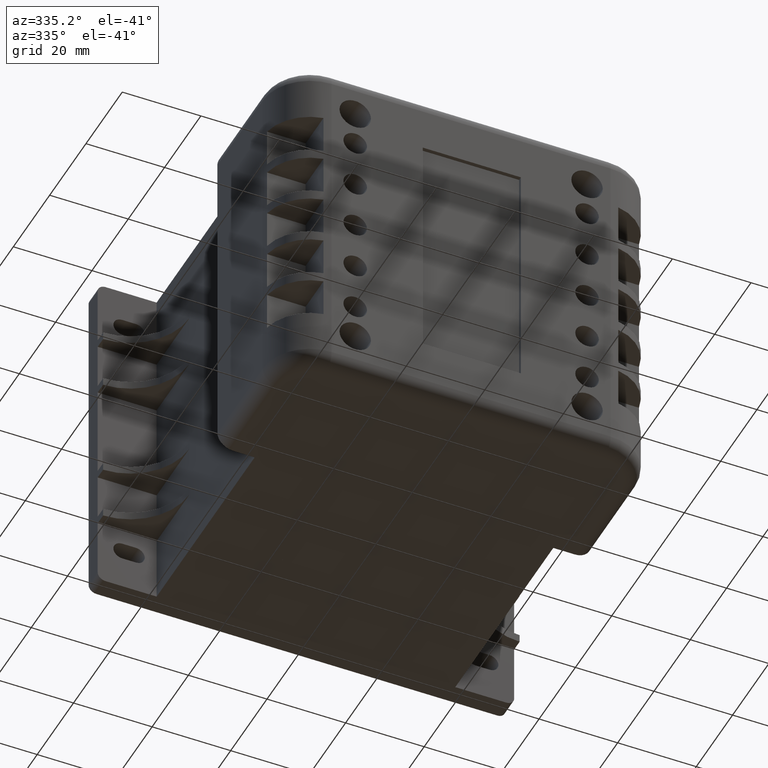
[diagram: clean part render]
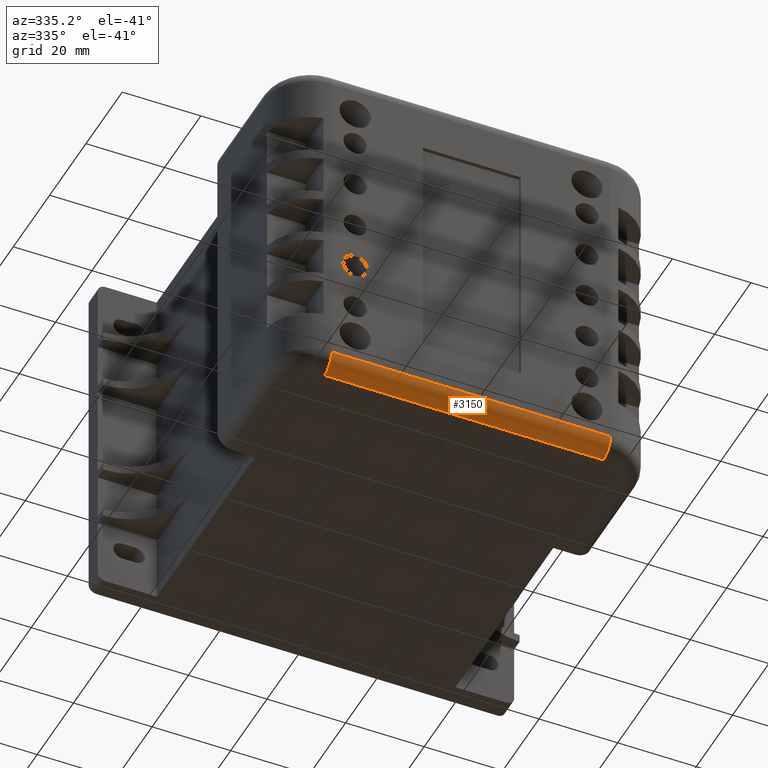
[diagram: same view with one face highlighted and labeled with its STEP entity id]
A machine part, auxiliary view. The second image highlights one B-rep face of the part: STEP entity #3150.
In plain terms, the highlighted cylindrical surface (edge-blend (fillet) strip) has radius 4 mm, axis along (1, -0, 0).
Its self-contained STEP definition (entity closure, byte-faithful):
#42=CYLINDRICAL_SURFACE('',#3486,4.);
#104=CIRCLE('',#3484,4.00000000000001);
#106=CIRCLE('',#3487,4.);
#281=FACE_OUTER_BOUND('',#471,.T.);
#471=EDGE_LOOP('',(#2114,#2115,#2116,#2117));
#683=LINE('',#4708,#987);
#712=LINE('',#4846,#1016);
#987=VECTOR('',#3787,10.);
#1016=VECTOR('',#3954,10.);
#1283=VERTEX_POINT('',#4705);
#1284=VERTEX_POINT('',#4707);
#1323=VERTEX_POINT('',#4840);
#1324=VERTEX_POINT('',#4844);
#1568=EDGE_CURVE('',#1284,#1283,#683,.T.);
#1627=EDGE_CURVE('',#1284,#1323,#104,.T.);
#1629=EDGE_CURVE('',#1283,#1324,#106,.T.);
#1630=EDGE_CURVE('',#1324,#1323,#712,.T.);
#2114=ORIENTED_EDGE('',*,*,#1629,.T.);
#2115=ORIENTED_EDGE('',*,*,#1630,.T.);
#2116=ORIENTED_EDGE('',*,*,#1627,.F.);
#2117=ORIENTED_EDGE('',*,*,#1568,.T.);
#3150=ADVANCED_FACE('',(#281),#42,.T.);
#3484=AXIS2_PLACEMENT_3D('',#4841,#3946,#3947);
#3486=AXIS2_PLACEMENT_3D('',#4843,#3950,#3951);
#3487=AXIS2_PLACEMENT_3D('',#4845,#3952,#3953);
#3787=DIRECTION('',(-1.,0.,0.));
#3946=DIRECTION('center_axis',(1.,0.,0.));
#3947=DIRECTION('ref_axis',(0.,0.,-1.));
#3950=DIRECTION('center_axis',(-1.,0.,0.));
#3951=DIRECTION('ref_axis',(0.,0.707106781186547,-0.707106781186548));
#3952=DIRECTION('center_axis',(1.,0.,0.));
#3953=DIRECTION('ref_axis',(0.,0.,-1.));
#3954=DIRECTION('',(1.,0.,0.));
#4705=CARTESIAN_POINT('',(-83.,33.,0.));
#4707=CARTESIAN_POINT('',(-12.,33.,0.));
#4708=CARTESIAN_POINT('',(-23.75,33.,0.));
#4840=CARTESIAN_POINT('',(-12.,37.,4.00000000000001));
#4841=CARTESIAN_POINT('Origin',(-12.,33.,4.00000000000001));
#4843=CARTESIAN_POINT('Origin',(-23.75,33.,4.));
#4844=CARTESIAN_POINT('',(-83.,37.,4.));
#4845=CARTESIAN_POINT('Origin',(-83.,33.,4.));
#4846=CARTESIAN_POINT('',(-23.75,37.,4.));